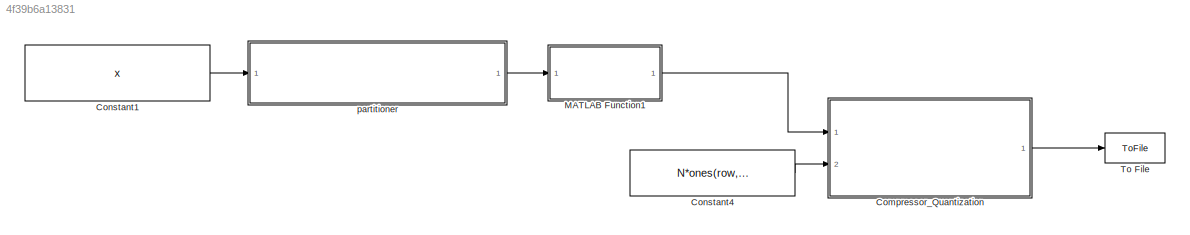
MODEL slx_4f39b6a13831
KIND model
CONFIG AbsTol = auto
CONFIG FixedStep = auto
CONFIG MaxStep = auto
CONFIG MinStep = auto
CONFIG RelTol = 1e-3
CONFIG SampleTimeConstraint = Unconstrained
CONFIG Solver = VariableStepAuto
CONFIG SolverMode = Auto
CONFIG SolverName = VariableStepAuto
CONFIG StartTime = 0.0
CONFIG StopTime = 0
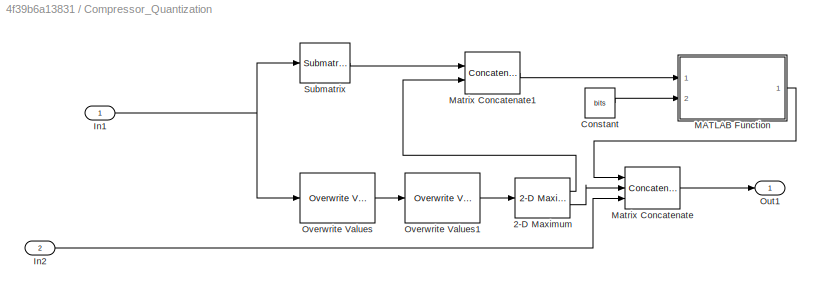
BLOCK [SubSystem] Compressor_Quantization
  Ports = [2, 1]
  RequestExecContextInheritance = off
  Variant = off
BLOCK [Reference] Compressor_Quantization/2-D Maximum  REF=visionstatistics/2-D Maximum
  Ports = [1, 2]
  SourceBlock = visionstatistics/2-D Maximum
  SourceType = 2-D Maximum
  UserDataPersistent = on
BLOCK [Constant] Compressor_Quantization/Constant
  Value = bits
BLOCK [Inport] Compressor_Quantization/In1
  IconDisplay = Port number
BLOCK [Inport] Compressor_Quantization/In2
  IconDisplay = Port number
  Port = 2
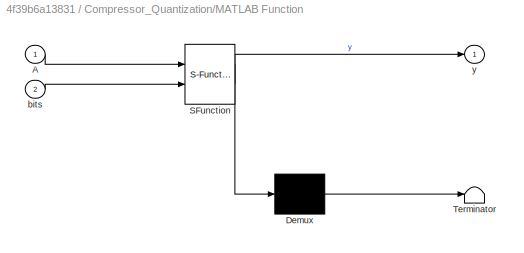
BLOCK [SubSystem] Compressor_Quantization/MATLAB Function
  ErrorFcn = Stateflow.Translate.translate
  PermitHierarchicalResolution = ExplicitOnly
  Ports = [2, 1]
  RequestExecContextInheritance = off
  SFBlockType = MATLAB Function
  TreatAsAtomicUnit = on
  Variant = off
BLOCK [Demux] Compressor_Quantization/MATLAB Function/ Demux 
  Outputs = 1
  Ports = [1, 1]
BLOCK [S-Function] Compressor_Quantization/MATLAB Function/ SFunction 
  EnableBusSupport = on
  FunctionName = sf_sfun
  PortCounts = [2 2]
  Ports = [2, 2]
  SFunctionDeploymentMode = off
  Tag = Stateflow S-Function untitled 3
BLOCK [Terminator] Compressor_Quantization/MATLAB Function/ Terminator 
BLOCK [Inport] Compressor_Quantization/MATLAB Function/A
  IconDisplay = Port number
BLOCK [Inport] Compressor_Quantization/MATLAB Function/bits
  IconDisplay = Port number
  Port = 2
BLOCK [Outport] Compressor_Quantization/MATLAB Function/y
  IconDisplay = Port number
BLOCK [Concatenate] Compressor_Quantization/Matrix Concatenate
  ConcatenateDimension = 2
  Mode = Multidimensional array
  NumInputs = 3
  Ports = [3, 1]
BLOCK [Concatenate] Compressor_Quantization/Matrix Concatenate1
  ConcatenateDimension = 2
  Mode = Multidimensional array
  Ports = [2, 1]
BLOCK [Outport] Compressor_Quantization/Out1
  IconDisplay = Port number
BLOCK [Reference] Compressor_Quantization/Overwrite Values  REF=dspmtrx3/Overwrite Values
  Ports = [1, 1]
  SourceBlock = dspmtrx3/Overwrite Values
  SourceType = Overwrite Values
BLOCK [Reference] Compressor_Quantization/Overwrite Values1  REF=dspmtrx3/Overwrite Values
  Ports = [1, 1]
  SourceBlock = dspmtrx3/Overwrite Values
  SourceType = Overwrite Values
BLOCK [Reference] Compressor_Quantization/Submatrix  REF=dspmtrx3/Submatrix
  Ports = [1, 1]
  SourceBlock = dspmtrx3/Submatrix
  SourceType = Submatrix
BLOCK [Constant] Constant1
  Value = x
BLOCK [Constant] Constant4
  Value = N*ones(row,1)
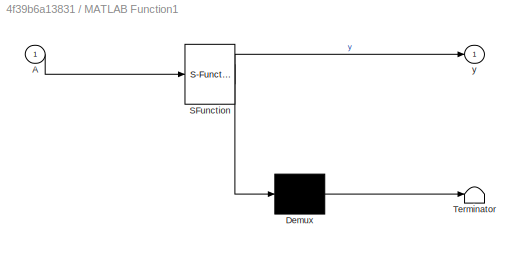
BLOCK [SubSystem] MATLAB Function1
  ErrorFcn = Stateflow.Translate.translate
  PermitHierarchicalResolution = ExplicitOnly
  Ports = [1, 1]
  RequestExecContextInheritance = off
  SFBlockType = MATLAB Function
  TreatAsAtomicUnit = on
  Variant = off
BLOCK [Demux] MATLAB Function1/ Demux 
  Outputs = 1
  Ports = [1, 1]
BLOCK [S-Function] MATLAB Function1/ SFunction 
  EnableBusSupport = on
  FunctionName = sf_sfun
  PortCounts = [1 2]
  Ports = [1, 2]
  SFunctionDeploymentMode = off
  Tag = Stateflow S-Function untitled 1
BLOCK [Terminator] MATLAB Function1/ Terminator 
BLOCK [Inport] MATLAB Function1/A
  IconDisplay = Port number
BLOCK [Outport] MATLAB Function1/y
  IconDisplay = Port number
BLOCK [ToFile] To File
  Filename = data.mat
  MatrixName = data
  Ports = [1]
  SaveFormat = Timeseries
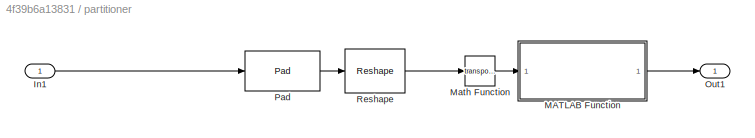
BLOCK [SubSystem] partitioner
  Ports = [1, 1]
  RequestExecContextInheritance = off
  Variant = off
BLOCK [Inport] partitioner/In1
  IconDisplay = Port number
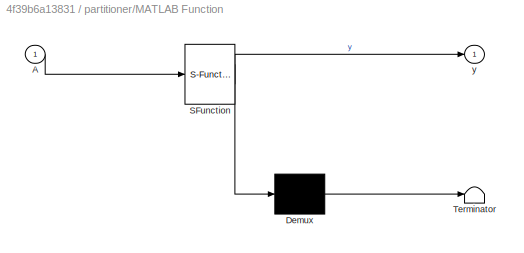
BLOCK [SubSystem] partitioner/MATLAB Function
  ErrorFcn = Stateflow.Translate.translate
  PermitHierarchicalResolution = ExplicitOnly
  Ports = [1, 1]
  RequestExecContextInheritance = off
  SFBlockType = MATLAB Function
  TreatAsAtomicUnit = on
  Variant = off
BLOCK [Demux] partitioner/MATLAB Function/ Demux 
  Outputs = 1
  Ports = [1, 1]
BLOCK [S-Function] partitioner/MATLAB Function/ SFunction 
  EnableBusSupport = on
  FunctionName = sf_sfun
  PortCounts = [1 2]
  Ports = [1, 2]
  SFunctionDeploymentMode = off
  Tag = Stateflow S-Function untitled 2
BLOCK [Terminator] partitioner/MATLAB Function/ Terminator 
BLOCK [Inport] partitioner/MATLAB Function/A
  IconDisplay = Port number
BLOCK [Outport] partitioner/MATLAB Function/y
  IconDisplay = Port number
BLOCK [Math] partitioner/Math Function
  Operator = transpose
  Ports = [1, 1]
BLOCK [Outport] partitioner/Out1
  IconDisplay = Port number
BLOCK [Reference] partitioner/Pad  REF=dspsigops/Pad
  Ports = [1, 1]
  SourceBlock = dspsigops/Pad
  SourceType = Pad
BLOCK [Reshape] partitioner/Reshape
  OutputDimensionality = Customize
  OutputDimensions = [col,row]
  Ports = [1, 1]
LINE Compressor_Quantization/2-D Maximum:1 -> Compressor_Quantization/Matrix Concatenate1:2
LINE Compressor_Quantization/2-D Maximum:2 -> Compressor_Quantization/Matrix Concatenate:2
LINE Compressor_Quantization/Constant:1 -> Compressor_Quantization/MATLAB Function:2
NET Compressor_Quantization/In1:1 -> Compressor_Quantization/Overwrite Values:1, Compressor_Quantization/Submatrix:1
LINE Compressor_Quantization/In2:1 -> Compressor_Quantization/Matrix Concatenate:3
LINE Compressor_Quantization/MATLAB Function:1 -> Compressor_Quantization/Matrix Concatenate:1
LINE Compressor_Quantization/Matrix Concatenate1:1 -> Compressor_Quantization/MATLAB Function:1
LINE Compressor_Quantization/Matrix Concatenate:1 -> Compressor_Quantization/Out1:1
LINE Compressor_Quantization/Overwrite Values1:1 -> Compressor_Quantization/2-D Maximum:1
LINE Compressor_Quantization/Overwrite Values:1 -> Compressor_Quantization/Overwrite Values1:1
LINE Compressor_Quantization/Submatrix:1 -> Compressor_Quantization/Matrix Concatenate1:1
LINE Compressor_Quantization:1 -> To File:1
LINE Constant1:1 -> partitioner:1
LINE Constant4:1 -> Compressor_Quantization:2
LINE MATLAB Function1:1 -> Compressor_Quantization:1
LINE partitioner/In1:1 -> partitioner/Pad:1
LINE partitioner/MATLAB Function:1 -> partitioner/Out1:1
LINE partitioner/Math Function:1 -> partitioner/MATLAB Function:1
LINE partitioner/Pad:1 -> partitioner/Reshape:1
LINE partitioner/Reshape:1 -> partitioner/Math Function:1
LINE partitioner:1 -> MATLAB Function1:1
note: NET lines group one-source signal fan-out (src -> all destinations, sorted); 1:1 wires keep LINE
CHART MATLAB Function1 states=1 transitions=1
  STATE_LABEL 'eML_blk_kernel()'
  STATE_LABEL "SCRIPT:\nfunction y = real_cepstrum(A)\n[row,col] = size(A);\ncoder.extrinsic('rceps')\ny = zeros(row,col);\nfor i = 1:row\n   A(i,:) = rceps(A(i,:)); \nend\ny = A;"
CHART partitioner/MATLAB Function states=1 transitions=1
  STATE_LABEL 'eML_blk_kernel()'
  STATE_LABEL "SCRIPT:\nfunction y = window_hamming(A)\n[row,col] = size(A);\ncoder.extrinsic('hamming')\ny = zeros(row,col);\nw = zeros(1,col);\nw = hamming(col)';\nfor i = 1:row\n   A(i,:) = A(i,:).*w; \nend\ny = A;"
CHART Compressor_Quantization/MATLAB Function states=1 transitions=1
  STATE_LABEL 'eML_blk_kernel()'
  STATE_LABEL 'SCRIPT:\nfunction y = Quantization(A,bits)\n%#codegen\n[row,col] = size(A);\ny = zeros(row,col);\nB = bits -1;\nXm = max(max(abs(A)));\ndelta = Xm/2^B;\nA = delta.*round(A./delta);\n\ny = A;'
